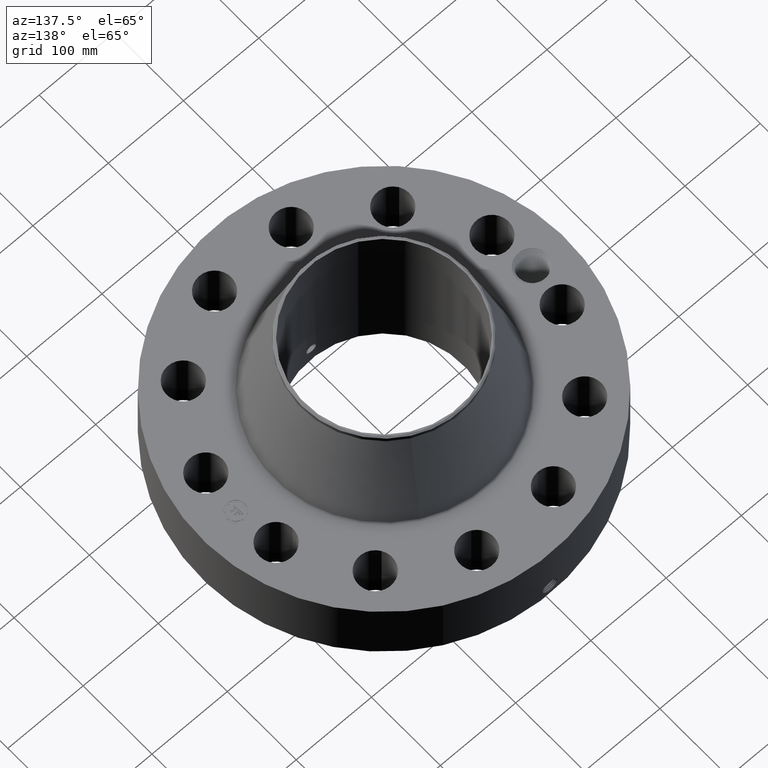
[diagram: clean part render]
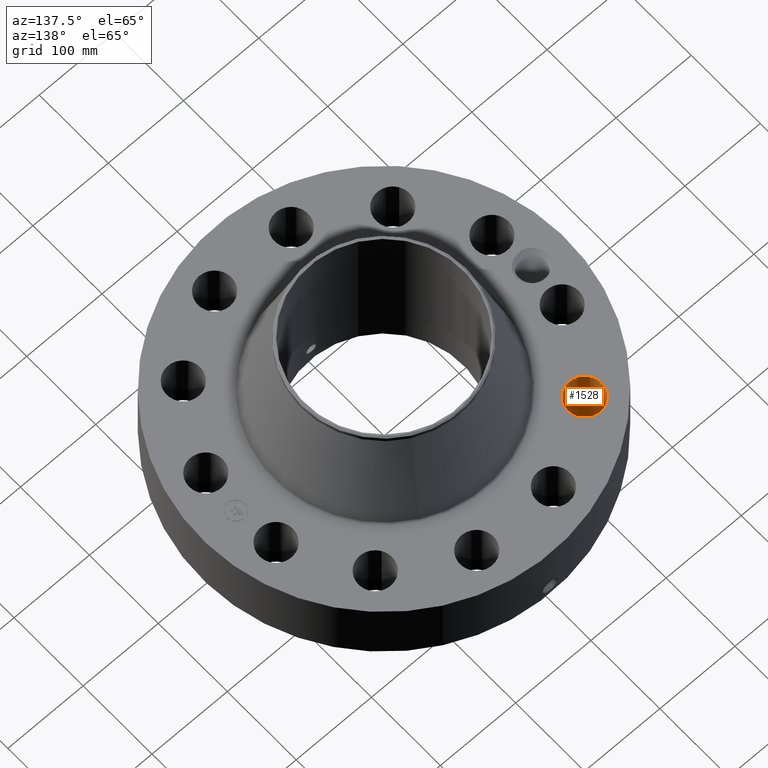
[diagram: same view with one face highlighted and labeled with its STEP entity id]
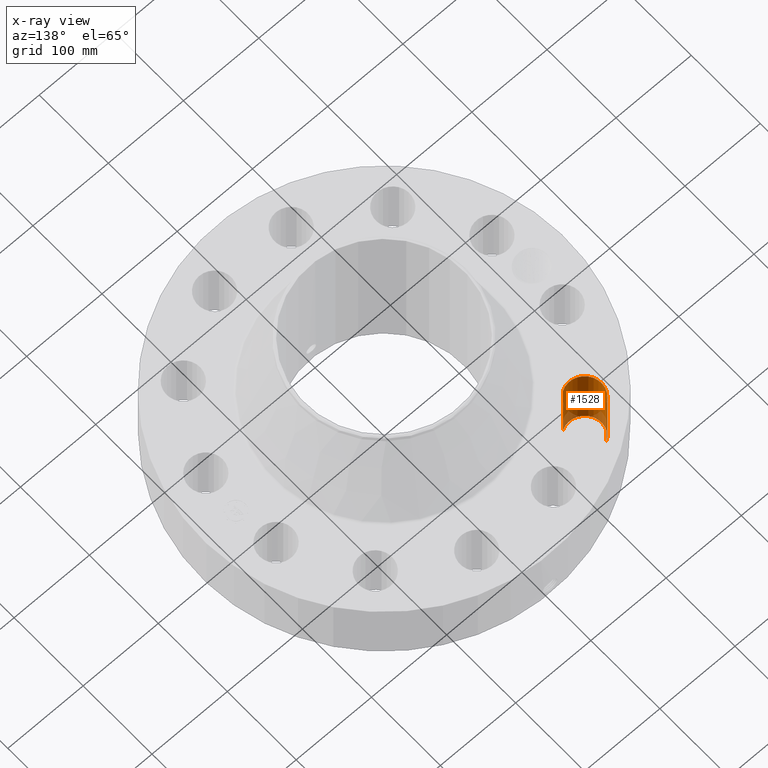
[diagram: x-ray of the same camera — body ghosted, the highlighted face saturated]
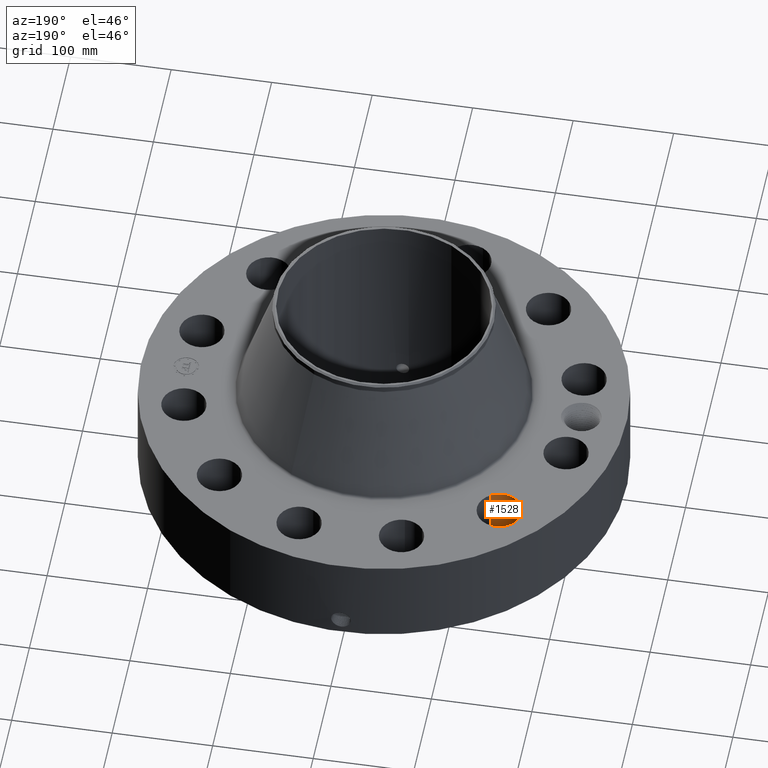
[diagram: same view with one face highlighted and labeled with its STEP entity id]
A machine part, auxiliary view. The second image highlights one B-rep face of the part: STEP entity #1528.
The next image is the same camera in x-ray: the body ghosted, the highlighted face saturated — about 13% of this face is hidden behind the body in this view.
A second angle (auxiliary view) of the same face is appended — the face is thin or edge-on in the first view.
In plain terms, the highlighted cylindrical surface (edge-blend (fillet) strip) has radius 22.225 mm, axis along (0, 0, -1).
Its self-contained STEP definition (entity closure, byte-faithful):
#388=AXIS2_PLACEMENT_3D('Circle Axis2P3D',#386,#387,$) ;
#798=AXIS2_PLACEMENT_3D('Circle Axis2P3D',#796,#797,$) ;
#1510=AXIS2_PLACEMENT_3D('Cylinder Axis2P3D',#1507,#1508,#1509) ;
#386=CARTESIAN_POINT('Axis2P3D Location',(-5.48007755422,5.48007755422,0.250000000001)) ;
#390=CARTESIAN_POINT('Vertex',(-5.0248185339,4.73283982469,0.250000000001)) ;
#392=CARTESIAN_POINT('Vertex',(-5.93533657453,6.22731528375,0.250000000001)) ;
#791=CARTESIAN_POINT('Vertex',(-5.93533657453,6.22731528375,3.87000000002)) ;
#793=CARTESIAN_POINT('Vertex',(-5.0248185339,4.73283982469,3.87000000002)) ;
#796=CARTESIAN_POINT('Axis2P3D Location',(-5.48007755422,5.48007755422,3.87000000002)) ;
#1507=CARTESIAN_POINT('Axis2P3D Location',(-5.48007755422,5.48007755422,3.86606299214)) ;
#1512=CARTESIAN_POINT('Line Origine',(-5.0248185339,4.73283982469,2.06000000001)) ;
#1517=CARTESIAN_POINT('Line Origine',(-5.93533657453,6.22731528375,2.06000000001)) ;
#387=DIRECTION('Axis2P3D Direction',(0.,0.,-0.0393700787402)) ;
#797=DIRECTION('Axis2P3D Direction',(0.,0.,-0.0393700787402)) ;
#1508=DIRECTION('Axis2P3D Direction',(0.,0.,-0.0393700787402)) ;
#1509=DIRECTION('Axis2P3D XDirection',(-0.0204840954021,0.0336214951417,0.)) ;
#1513=DIRECTION('Vector Direction',(0.,0.,-0.0393700787402)) ;
#1518=DIRECTION('Vector Direction',(0.,0.,-0.0393700787402)) ;
#1514=VECTOR('Line Direction',#1513,0.0393700787402) ;
#1519=VECTOR('Line Direction',#1518,0.0393700787402) ;
#1523=ORIENTED_EDGE('',*,*,#1516,.F.) ;
#1524=ORIENTED_EDGE('',*,*,#394,.T.) ;
#1525=ORIENTED_EDGE('',*,*,#1521,.T.) ;
#1526=ORIENTED_EDGE('',*,*,#800,.F.) ;
#1528=ADVANCED_FACE('PartBody',(#1527),#1511,.F.) ;
#389=CIRCLE('generated circle',#388,0.875000000003) ;
#799=CIRCLE('generated circle',#798,0.875000000003) ;
#1511=CYLINDRICAL_SURFACE('generated cylinder',#1510,0.875000000003) ;
#394=EDGE_CURVE('',#391,#393,#389,.T.) ;
#800=EDGE_CURVE('',#794,#792,#799,.T.) ;
#1516=EDGE_CURVE('',#391,#794,#1515,.F.) ;
#1521=EDGE_CURVE('',#393,#792,#1520,.F.) ;
#1522=EDGE_LOOP('',(#1523,#1524,#1525,#1526)) ;
#1527=FACE_OUTER_BOUND('',#1522,.T.) ;
#1515=LINE('Line',#1512,#1514) ;
#1520=LINE('Line',#1517,#1519) ;
#391=VERTEX_POINT('',#390) ;
#393=VERTEX_POINT('',#392) ;
#792=VERTEX_POINT('',#791) ;
#794=VERTEX_POINT('',#793) ;